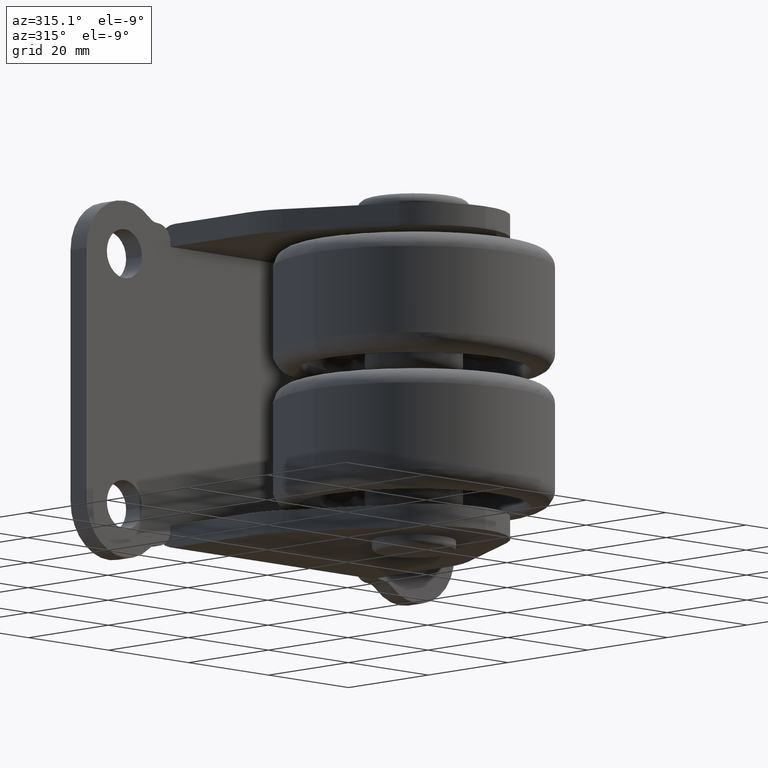
[diagram: clean part render]
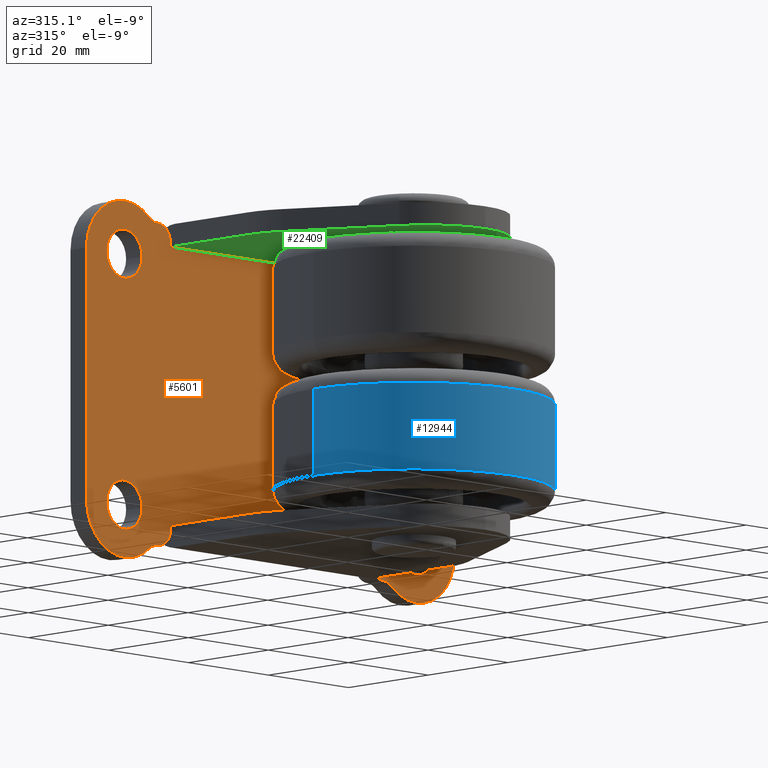
[diagram: same view with three faces highlighted in distinct colors, each labeled with its STEP entity id]
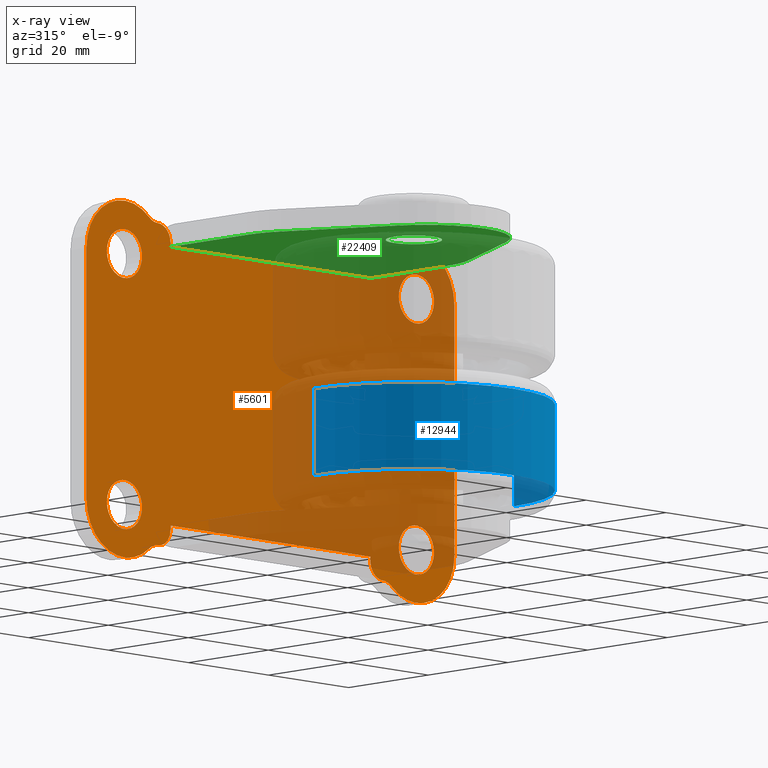
[diagram: x-ray of the same camera — body ghosted, the three highlighted faces saturated]
A machine part, auxiliary view with three faces highlighted in distinct colors.
The next image is the same camera in x-ray (body ghosted, the three faces saturated) — at least one of them is partly hidden behind the body in this view.
Their STEP definitions:

[orange] entity #5601 — the highlighted planar face has unit normal (-0, 1, 0).
#369 = DIRECTION ( 'NONE',  ( 0.000000000000000000, -1.000000000000000000, -3.491481338843135327E-15 ) ) ;
#392 = DIRECTION ( 'NONE',  ( 1.000000000000000000, 0.000000000000000000, 0.000000000000000000 ) ) ;
#583 = CIRCLE ( 'NONE', #4011, 4.400000000000001243 ) ;
#668 = CIRCLE ( 'NONE', #6678, 4.400000000000001243 ) ;
#674 = CARTESIAN_POINT ( 'NONE',  ( 18.10542098948559797, 32.43608458371519987, -24.50000000000000000 ) ) ;
#687 = CARTESIAN_POINT ( 'NONE',  ( -31.89457901051440203, 32.43608458371499381, 29.50000000000000000 ) ) ;
#816 = FACE_BOUND ( 'NONE', #5813, .T. ) ;
#847 = CARTESIAN_POINT ( 'NONE',  ( 18.10542098948559797, 32.43608458371499381, 30.24897948556665028 ) ) ;
#859 = ORIENTED_EDGE ( 'NONE', *, *, #26561, .T. ) ;
#941 = ORIENTED_EDGE ( 'NONE', *, *, #6550, .T. ) ;
#949 = DIRECTION ( 'NONE',  ( -0.000000000000000000, 1.000000000000000000, 3.491481338843135327E-15 ) ) ;
#1073 = FACE_BOUND ( 'NONE', #10955, .T. ) ;
#1192 = CARTESIAN_POINT ( 'NONE',  ( -35.04457901051440416, 32.43608458371519987, -21.24897948556624883 ) ) ;
#1249 = AXIS2_PLACEMENT_3D ( 'NONE', #17398, #21297, #2901 ) ;
#1287 = EDGE_CURVE ( 'NONE', #15219, #7716, #6581, .T. ) ;
#1318 = CARTESIAN_POINT ( 'NONE',  ( -35.09762229228130082, 32.43608458371499381, 33.39897948556644991 ) ) ;
#1359 = VECTOR ( 'NONE', #9820, 1000.000000000000000 ) ;
#1782 = VERTEX_POINT ( 'NONE', #20478 ) ;
#2155 = AXIS2_PLACEMENT_3D ( 'NONE', #22432, #20409, #19869 ) ;
#2202 = DIRECTION ( 'NONE',  ( -1.000000000000000000, 0.000000000000000000, 0.000000000000000000 ) ) ;
#2230 = EDGE_CURVE ( 'NONE', #7716, #20728, #15333, .T. ) ;
#2448 = EDGE_CURVE ( 'NONE', #18706, #6135, #11404, .T. ) ;
#2526 = EDGE_CURVE ( 'NONE', #11428, #20777, #668, .T. ) ;
#2600 = VERTEX_POINT ( 'NONE', #26180 ) ;
#2753 = LINE ( 'NONE', #2884, #11210 ) ;
#2826 = DIRECTION ( 'NONE',  ( 0.000000000000000000, -3.491481338843135327E-15, 1.000000000000000000 ) ) ;
#2854 = CARTESIAN_POINT ( 'NONE',  ( -43.39457901051435584, 32.43608458371504355, 27.00000000000000000 ) ) ;
#2859 = VECTOR ( 'NONE', #2826, 1000.000000000000000 ) ;
#2881 = VERTEX_POINT ( 'NONE', #22747 ) ;
#2884 = CARTESIAN_POINT ( 'NONE',  ( -52.89457901051439848, 32.43608458371519987, -27.50000000000000000 ) ) ;
#2901 = DIRECTION ( 'NONE',  ( -1.000000000000000000, 0.000000000000000000, 0.000000000000000000 ) ) ;
#2952 = VERTEX_POINT ( 'NONE', #11057 ) ;
#2980 = AXIS2_PLACEMENT_3D ( 'NONE', #10815, #10679, #14581 ) ;
#3008 = CARTESIAN_POINT ( 'NONE',  ( 18.10542098948559797, 32.43608458371519987, -21.24897948556640159 ) ) ;
#3021 = EDGE_CURVE ( 'NONE', #21694, #7764, #26351, .T. ) ;
#3248 = DIRECTION ( 'NONE',  ( 0.000000000000000000, -1.000000000000000000, -3.491481338843135327E-15 ) ) ;
#3249 = EDGE_CURVE ( 'NONE', #14262, #16792, #24218, .T. ) ;
#3403 = EDGE_CURVE ( 'NONE', #16792, #19826, #9093, .T. ) ;
#3466 = ORIENTED_EDGE ( 'NONE', *, *, #2230, .F. ) ;
#3716 = AXIS2_PLACEMENT_3D ( 'NONE', #23151, #12562, #18854 ) ;
#3803 = CARTESIAN_POINT ( 'NONE',  ( 21.30846427125220188, 32.43608458371499381, 33.39897948556664886 ) ) ;
#3995 = DIRECTION ( 'NONE',  ( -1.000000000000000000, 0.000000000000000000, 0.000000000000000000 ) ) ;
#4011 = AXIS2_PLACEMENT_3D ( 'NONE', #17735, #11568, #25932 ) ;
#4170 = VERTEX_POINT ( 'NONE', #22543 ) ;
#4202 = DIRECTION ( 'NONE',  ( 0.000000000000000000, -1.000000000000000000, -3.491481338843135327E-15 ) ) ;
#4268 = ORIENTED_EDGE ( 'NONE', *, *, #3249, .T. ) ;
#4276 = CIRCLE ( 'NONE', #2155, 3.149999999999999911 ) ;
#4418 = CARTESIAN_POINT ( 'NONE',  ( -35.04457901051440416, 32.43608458371499381, 33.39897948556644991 ) ) ;
#4445 = ORIENTED_EDGE ( 'NONE', *, *, #2526, .T. ) ;
#4662 = DIRECTION ( 'NONE',  ( 1.000000000000000000, 1.622929641593520113E-29, -4.648255236361250876E-15 ) ) ;
#4663 = ORIENTED_EDGE ( 'NONE', *, *, #8511, .F. ) ;
#4680 = CIRCLE ( 'NONE', #1249, 9.500000000000001776 ) ;
#4794 = LINE ( 'NONE', #7210, #13250 ) ;
#4932 = CARTESIAN_POINT ( 'NONE',  ( -38.99457901051435726, 32.43608458371519987, -18.00000000000000000 ) ) ;
#4944 = CARTESIAN_POINT ( 'NONE',  ( -31.89457901051440203, 32.43608458371499381, 33.50000000000000000 ) ) ;
#4970 = FACE_BOUND ( 'NONE', #6555, .T. ) ;
#5016 = CARTESIAN_POINT ( 'NONE',  ( 21.30846427125220188, 32.43608458371519987, -27.54897948556640230 ) ) ;
#5084 = VERTEX_POINT ( 'NONE', #3803 ) ;
#5138 = CARTESIAN_POINT ( 'NONE',  ( 21.30846427125220188, 32.43608458371499381, 36.54897948556665455 ) ) ;
#5250 = PLANE ( 'NONE',  #25583 ) ;
#5407 = DIRECTION ( 'NONE',  ( -1.000000000000000000, 0.000000000000000000, 0.000000000000000000 ) ) ;
#5595 = VERTEX_POINT ( 'NONE', #23112 ) ;
#5601 = ADVANCED_FACE ( 'NONE', ( #19345, #1073, #15180, #4970, #816 ), #5250, .F. ) ;
#5659 = CARTESIAN_POINT ( 'NONE',  ( 18.10542098948559797, 32.43608458371499381, 33.39897948556644991 ) ) ;
#5681 = EDGE_CURVE ( 'NONE', #14262, #7971, #10904, .T. ) ;
#5765 = ORIENTED_EDGE ( 'NONE', *, *, #10859, .T. ) ;
#5813 = EDGE_LOOP ( 'NONE', ( #16990, #26212 ) ) ;
#5968 = EDGE_CURVE ( 'NONE', #6572, #23785, #7580, .T. ) ;
#6112 = DIRECTION ( 'NONE',  ( -1.000000000000000000, 0.000000000000000000, 0.000000000000000000 ) ) ;
#6135 = VERTEX_POINT ( 'NONE', #16967 ) ;
#6332 = VERTEX_POINT ( 'NONE', #18822 ) ;
#6541 = EDGE_CURVE ( 'NONE', #21694, #6332, #4276, .T. ) ;
#6550 = EDGE_CURVE ( 'NONE', #5595, #7971, #12366, .T. ) ;
#6554 = CARTESIAN_POINT ( 'NONE',  ( -43.39457901051435584, 32.43608458371519987, -18.00000000000000000 ) ) ;
#6555 = EDGE_LOOP ( 'NONE', ( #4663, #12742 ) ) ;
#6572 = VERTEX_POINT ( 'NONE', #8593 ) ;
#6581 = LINE ( 'NONE', #4944, #10761 ) ;
#6612 = EDGE_CURVE ( 'NONE', #21059, #2952, #18445, .T. ) ;
#6678 = AXIS2_PLACEMENT_3D ( 'NONE', #6844, #8994, #16921 ) ;
#6775 = DIRECTION ( 'NONE',  ( 0.000000000000000000, -1.000000000000000000, -3.491481338843135327E-15 ) ) ;
#6844 = CARTESIAN_POINT ( 'NONE',  ( -43.39457901051435584, 32.43608458371504355, 27.00000000000000000 ) ) ;
#7155 = DIRECTION ( 'NONE',  ( 0.000000000000000000, 3.491481338843135327E-15, -1.000000000000000000 ) ) ;
#7206 = CARTESIAN_POINT ( 'NONE',  ( 18.10542098948559797, 32.43608458371519987, -24.39897948556640017 ) ) ;
#7210 = CARTESIAN_POINT ( 'NONE',  ( 18.10542098948559797, 32.43608458371519987, -24.39897948556624740 ) ) ;
#7308 = DIRECTION ( 'NONE',  ( -1.000000000000000000, 0.000000000000000000, 0.000000000000000000 ) ) ;
#7580 = CIRCLE ( 'NONE', #22607, 3.149999999999999911 ) ;
#7716 = VERTEX_POINT ( 'NONE', #16637 ) ;
#7764 = VERTEX_POINT ( 'NONE', #4418 ) ;
#7765 = CIRCLE ( 'NONE', #12497, 3.149999999999999911 ) ;
#7831 = ORIENTED_EDGE ( 'NONE', *, *, #24224, .F. ) ;
#7971 = VERTEX_POINT ( 'NONE', #11521 ) ;
#7991 = VERTEX_POINT ( 'NONE', #20093 ) ;
#8263 = CARTESIAN_POINT ( 'NONE',  ( -38.99457901051435726, 32.43608458371504355, 27.00000000000000000 ) ) ;
#8276 = ORIENTED_EDGE ( 'NONE', *, *, #26147, .F. ) ;
#8325 = CARTESIAN_POINT ( 'NONE',  ( 18.10542098948559797, 32.43608458371517145, -20.49999999999990763 ) ) ;
#8430 = AXIS2_PLACEMENT_3D ( 'NONE', #2854, #3248, #5407 ) ;
#8451 = VECTOR ( 'NONE', #24700, 1000.000000000000000 ) ;
#8511 = EDGE_CURVE ( 'NONE', #18944, #17291, #583, .T. ) ;
#8593 = CARTESIAN_POINT ( 'NONE',  ( 21.25542098948559655, 32.43608458371499381, 33.39897948556664886 ) ) ;
#8755 = ORIENTED_EDGE ( 'NONE', *, *, #19014, .F. ) ;
#8796 = ORIENTED_EDGE ( 'NONE', *, *, #6541, .T. ) ;
#8872 = EDGE_CURVE ( 'NONE', #6572, #5084, #13662, .T. ) ;
#8927 = DIRECTION ( 'NONE',  ( 1.000000000000000000, 0.000000000000000000, 0.000000000000000000 ) ) ;
#8957 = CIRCLE ( 'NONE', #26123, 4.400000000000001243 ) ;
#8994 = DIRECTION ( 'NONE',  ( 0.000000000000000000, 1.000000000000000000, 3.491481338843135327E-15 ) ) ;
#9085 = VERTEX_POINT ( 'NONE', #24261 ) ;
#9093 = LINE ( 'NONE', #7206, #25504 ) ;
#9098 = ORIENTED_EDGE ( 'NONE', *, *, #11740, .T. ) ;
#9183 = DIRECTION ( 'NONE',  ( 0.000000000000000000, 1.000000000000000000, 3.491481338843135327E-15 ) ) ;
#9223 = CARTESIAN_POINT ( 'NONE',  ( 39.10542098948560152, 32.43608458371499381, 36.50000000000000000 ) ) ;
#9310 = ORIENTED_EDGE ( 'NONE', *, *, #5681, .F. ) ;
#9347 = CIRCLE ( 'NONE', #24362, 4.400000000000001243 ) ;
#9788 = EDGE_LOOP ( 'NONE', ( #4445, #16501 ) ) ;
#9820 = DIRECTION ( 'NONE',  ( 1.000000000000000000, 0.000000000000000000, 0.000000000000000000 ) ) ;
#10205 = AXIS2_PLACEMENT_3D ( 'NONE', #1192, #25786, #15566 ) ;
#10277 = ORIENTED_EDGE ( 'NONE', *, *, #17294, .T. ) ;
#10347 = ORIENTED_EDGE ( 'NONE', *, *, #3021, .F. ) ;
#10679 = DIRECTION ( 'NONE',  ( 0.000000000000000000, 1.000000000000000000, 3.491481338843135327E-15 ) ) ;
#10689 = ORIENTED_EDGE ( 'NONE', *, *, #8872, .F. ) ;
#10703 = LINE ( 'NONE', #15212, #15732 ) ;
#10761 = VECTOR ( 'NONE', #13140, 1000.000000000000000 ) ;
#10815 = CARTESIAN_POINT ( 'NONE',  ( -43.39457901051435584, 32.43608458371504355, 27.00000000000000000 ) ) ;
#10856 = CARTESIAN_POINT ( 'NONE',  ( -43.39457901051435584, 32.43608458371519987, -18.00000000000000000 ) ) ;
#10859 = EDGE_CURVE ( 'NONE', #7991, #15888, #11560, .T. ) ;
#10904 = LINE ( 'NONE', #674, #2859 ) ;
#10923 = CARTESIAN_POINT ( 'NONE',  ( -31.89457901051440203, 32.43608458371499381, 30.24897948556645133 ) ) ;
#10955 = EDGE_LOOP ( 'NONE', ( #19109, #8276 ) ) ;
#11008 = VERTEX_POINT ( 'NONE', #20654 ) ;
#11057 = CARTESIAN_POINT ( 'NONE',  ( 34.00542098948560010, 32.43608458371519987, -18.00000000000000000 ) ) ;
#11127 = EDGE_CURVE ( 'NONE', #1782, #7991, #18846, .T. ) ;
#11132 = LINE ( 'NONE', #9223, #16258 ) ;
#11152 = AXIS2_PLACEMENT_3D ( 'NONE', #22561, #24705, #14887 ) ;
#11210 = VECTOR ( 'NONE', #21549, 1000.000000000000000 ) ;
#11313 = EDGE_CURVE ( 'NONE', #17284, #21812, #4680, .T. ) ;
#11404 = CIRCLE ( 'NONE', #21683, 4.400000000000001243 ) ;
#11428 = VERTEX_POINT ( 'NONE', #8263 ) ;
#11521 = CARTESIAN_POINT ( 'NONE',  ( 18.10542098948559797, 32.43608458371519987, -20.49999999999991118 ) ) ;
#11560 = CIRCLE ( 'NONE', #14147, 3.149999999999999911 ) ;
#11568 = DIRECTION ( 'NONE',  ( 0.000000000000000000, -1.000000000000000000, -3.491481338843135327E-15 ) ) ;
#11577 = EDGE_CURVE ( 'NONE', #20777, #11428, #17125, .T. ) ;
#11740 = EDGE_CURVE ( 'NONE', #19826, #9085, #18865, .T. ) ;
#11908 = ORIENTED_EDGE ( 'NONE', *, *, #16548, .F. ) ;
#12324 = CARTESIAN_POINT ( 'NONE',  ( 25.20542098948559939, 32.43608458371519987, -18.00000000000000000 ) ) ;
#12366 = LINE ( 'NONE', #8325, #13701 ) ;
#12497 = AXIS2_PLACEMENT_3D ( 'NONE', #5138, #21248, #23390 ) ;
#12562 = DIRECTION ( 'NONE',  ( -2.550212481863635271E-30, -1.000000000000000000, -3.491481338843135327E-15 ) ) ;
#12730 = CARTESIAN_POINT ( 'NONE',  ( 21.25542098948559655, 32.43608458371519987, -21.24897948556640159 ) ) ;
#12742 = ORIENTED_EDGE ( 'NONE', *, *, #16602, .F. ) ;
#12859 = CARTESIAN_POINT ( 'NONE',  ( 39.10542098948560152, 32.43608458371504355, 27.00000000000039790 ) ) ;
#13045 = CARTESIAN_POINT ( 'NONE',  ( 18.10542098948559797, 32.43608458371519987, -27.50000000000000000 ) ) ;
#13140 = DIRECTION ( 'NONE',  ( 0.000000000000000000, 3.491481338843135327E-15, -1.000000000000000000 ) ) ;
#13250 = VECTOR ( 'NONE', #19298, 1000.000000000000000 ) ;
#13259 = DIRECTION ( 'NONE',  ( 0.000000000000000000, -1.000000000000000000, -3.491481338843135327E-15 ) ) ;
#13276 = AXIS2_PLACEMENT_3D ( 'NONE', #6554, #20907, #14987 ) ;
#13539 = DIRECTION ( 'NONE',  ( -1.000000000000000000, 0.000000000000000000, 0.000000000000000000 ) ) ;
#13662 = LINE ( 'NONE', #19559, #16883 ) ;
#13701 = VECTOR ( 'NONE', #392, 1000.000000000000000 ) ;
#13855 = DIRECTION ( 'NONE',  ( -1.000000000000000000, 0.000000000000000000, 0.000000000000000000 ) ) ;
#13988 = ORIENTED_EDGE ( 'NONE', *, *, #11313, .F. ) ;
#14147 = AXIS2_PLACEMENT_3D ( 'NONE', #21729, #19569, #13539 ) ;
#14262 = VERTEX_POINT ( 'NONE', #3008 ) ;
#14581 = DIRECTION ( 'NONE',  ( -1.000000000000000000, 0.000000000000000000, 0.000000000000000000 ) ) ;
#14782 = ORIENTED_EDGE ( 'NONE', *, *, #11127, .T. ) ;
#14799 = EDGE_LOOP ( 'NONE', ( #18315, #25145, #14782, #5765, #11908, #859, #8755, #941, #9310, #4268, #23025, #9098, #16228, #10277, #13988, #19731, #10689, #24709, #7831, #3466, #22553, #16002, #10347, #8796 ) ) ;
#14887 = DIRECTION ( 'NONE',  ( -1.000000000000000000, 0.000000000000000000, 0.000000000000000000 ) ) ;
#14987 = DIRECTION ( 'NONE',  ( -1.000000000000000000, 0.000000000000000000, 0.000000000000000000 ) ) ;
#15129 = DIRECTION ( 'NONE',  ( 1.000000000000000000, 0.000000000000000000, 0.000000000000000000 ) ) ;
#15180 = FACE_BOUND ( 'NONE', #9788, .T. ) ;
#15212 = CARTESIAN_POINT ( 'NONE',  ( -31.89457901051440203, 32.43608458371519987, -20.50000000000000000 ) ) ;
#15219 = VERTEX_POINT ( 'NONE', #10923 ) ;
#15283 = CIRCLE ( 'NONE', #16576, 4.400000000000001243 ) ;
#15333 = LINE ( 'NONE', #687, #22697 ) ;
#15404 = CARTESIAN_POINT ( 'NONE',  ( 23.37450487697824997, 32.43608458371499381, 34.17117036465484858 ) ) ;
#15566 = DIRECTION ( 'NONE',  ( -1.000000000000000000, 0.000000000000000000, 0.000000000000000000 ) ) ;
#15732 = VECTOR ( 'NONE', #7155, 1000.000000000000000 ) ;
#15888 = VERTEX_POINT ( 'NONE', #20989 ) ;
#16002 = ORIENTED_EDGE ( 'NONE', *, *, #24652, .T. ) ;
#16126 = CARTESIAN_POINT ( 'NONE',  ( 29.60542098948559797, 32.43608458371519987, -18.00000000000000000 ) ) ;
#16228 = ORIENTED_EDGE ( 'NONE', *, *, #19980, .T. ) ;
#16258 = VECTOR ( 'NONE', #17413, 1000.000000000000000 ) ;
#16501 = ORIENTED_EDGE ( 'NONE', *, *, #11577, .T. ) ;
#16510 = CARTESIAN_POINT ( 'NONE',  ( 18.10542098948559797, 32.43608458371499381, 29.50000000000000000 ) ) ;
#16548 = EDGE_CURVE ( 'NONE', #2600, #15888, #4794, .T. ) ;
#16576 = AXIS2_PLACEMENT_3D ( 'NONE', #16126, #21915, #13855 ) ;
#16602 = EDGE_CURVE ( 'NONE', #17291, #18944, #8957, .T. ) ;
#16637 = CARTESIAN_POINT ( 'NONE',  ( -31.89457901051440203, 32.43608458371499381, 29.50000000000000000 ) ) ;
#16792 = VERTEX_POINT ( 'NONE', #24936 ) ;
#16883 = VECTOR ( 'NONE', #21853, 1000.000000000000000 ) ;
#16921 = DIRECTION ( 'NONE',  ( -1.000000000000000000, 0.000000000000000000, 0.000000000000000000 ) ) ;
#16967 = CARTESIAN_POINT ( 'NONE',  ( 25.20542098948559939, 32.43608458371504355, 27.00000000000000000 ) ) ;
#16990 = ORIENTED_EDGE ( 'NONE', *, *, #6612, .T. ) ;
#17125 = CIRCLE ( 'NONE', #2980, 4.400000000000001243 ) ;
#17221 = DIRECTION ( 'NONE',  ( 1.000000000000000000, 0.000000000000000000, 0.000000000000000000 ) ) ;
#17250 = CARTESIAN_POINT ( 'NONE',  ( 29.60542098948559797, 32.43608458371504355, 27.00000000000000000 ) ) ;
#17284 = VERTEX_POINT ( 'NONE', #15404 ) ;
#17291 = VERTEX_POINT ( 'NONE', #4932 ) ;
#17294 = EDGE_CURVE ( 'NONE', #2881, #21812, #11132, .T. ) ;
#17396 = CARTESIAN_POINT ( 'NONE',  ( 21.30846427125220188, 32.43608458371519987, -24.39897948556640017 ) ) ;
#17398 = CARTESIAN_POINT ( 'NONE',  ( 29.60542098948529954, 32.43608458371504355, 27.00000000000035172 ) ) ;
#17413 = DIRECTION ( 'NONE',  ( 0.000000000000000000, -3.491481338843135327E-15, 1.000000000000000000 ) ) ;
#17438 = CARTESIAN_POINT ( 'NONE',  ( 29.60542098948559797, 32.43608458371504355, 27.00000000000000000 ) ) ;
#17735 = CARTESIAN_POINT ( 'NONE',  ( -43.39457901051435584, 32.43608458371519987, -18.00000000000000000 ) ) ;
#18315 = ORIENTED_EDGE ( 'NONE', *, *, #23821, .T. ) ;
#18323 = DIRECTION ( 'NONE',  ( 0.000000000000000000, -1.000000000000000000, -3.491481338843135327E-15 ) ) ;
#18445 = CIRCLE ( 'NONE', #11152, 4.400000000000001243 ) ;
#18706 = VERTEX_POINT ( 'NONE', #22148 ) ;
#18822 = CARTESIAN_POINT ( 'NONE',  ( -37.16366289800729561, 32.43608458371499381, 34.17117036465464963 ) ) ;
#18846 = CIRCLE ( 'NONE', #13276, 9.500000000000001776 ) ;
#18854 = DIRECTION ( 'NONE',  ( -1.000000000000000000, 0.000000000000000000, 7.304098846218133681E-16 ) ) ;
#18865 = CIRCLE ( 'NONE', #20157, 3.149999999999999911 ) ;
#18944 = VERTEX_POINT ( 'NONE', #19830 ) ;
#19014 = EDGE_CURVE ( 'NONE', #5595, #4170, #10703, .T. ) ;
#19109 = ORIENTED_EDGE ( 'NONE', *, *, #2448, .F. ) ;
#19298 = DIRECTION ( 'NONE',  ( -1.000000000000000000, 0.000000000000000000, 0.000000000000000000 ) ) ;
#19345 = FACE_OUTER_BOUND ( 'NONE', #14799, .T. ) ;
#19447 = DIRECTION ( 'NONE',  ( 0.000000000000000000, -1.000000000000000000, -3.491481338843135327E-15 ) ) ;
#19467 = DIRECTION ( 'NONE',  ( 1.000000000000000000, 0.000000000000000000, 0.000000000000000000 ) ) ;
#19559 = CARTESIAN_POINT ( 'NONE',  ( 18.10542098948529954, 32.43608458371499381, 33.39897948556660623 ) ) ;
#19569 = DIRECTION ( 'NONE',  ( 0.000000000000000000, 1.000000000000000000, 3.491481338843135327E-15 ) ) ;
#19731 = ORIENTED_EDGE ( 'NONE', *, *, #22565, .T. ) ;
#19826 = VERTEX_POINT ( 'NONE', #17396 ) ;
#19830 = CARTESIAN_POINT ( 'NONE',  ( -47.79457901051429758, 32.43608458371519987, -18.00000000000000000 ) ) ;
#19869 = DIRECTION ( 'NONE',  ( -1.000000000000000000, 0.000000000000000000, 0.000000000000000000 ) ) ;
#19980 = EDGE_CURVE ( 'NONE', #9085, #2881, #23898, .T. ) ;
#20093 = CARTESIAN_POINT ( 'NONE',  ( -37.16366289800729561, 32.43608458371519987, -25.17117036465444713 ) ) ;
#20157 = AXIS2_PLACEMENT_3D ( 'NONE', #5016, #9183, #7308 ) ;
#20409 = DIRECTION ( 'NONE',  ( 0.000000000000000000, 1.000000000000000000, 3.491481338843135327E-15 ) ) ;
#20478 = CARTESIAN_POINT ( 'NONE',  ( -52.89457901051439848, 32.43608458371519987, -18.00000000000000000 ) ) ;
#20654 = CARTESIAN_POINT ( 'NONE',  ( -52.89457901051439848, 32.43608458371504355, 27.00000000000000000 ) ) ;
#20728 = VERTEX_POINT ( 'NONE', #21894 ) ;
#20777 = VERTEX_POINT ( 'NONE', #22700 ) ;
#20907 = DIRECTION ( 'NONE',  ( 0.000000000000000000, -1.000000000000000000, -3.491481338843135327E-15 ) ) ;
#20989 = CARTESIAN_POINT ( 'NONE',  ( -35.09762229228130082, 32.43608458371519987, -24.39897948556624740 ) ) ;
#21059 = VERTEX_POINT ( 'NONE', #12324 ) ;
#21248 = DIRECTION ( 'NONE',  ( 0.000000000000000000, 1.000000000000000000, 3.491481338843135327E-15 ) ) ;
#21297 = DIRECTION ( 'NONE',  ( 0.000000000000000000, 1.000000000000000000, 3.491481338843135327E-15 ) ) ;
#21549 = DIRECTION ( 'NONE',  ( 0.000000000000000000, 3.491481338843135327E-15, -1.000000000000000000 ) ) ;
#21683 = AXIS2_PLACEMENT_3D ( 'NONE', #17438, #19447, #23483 ) ;
#21694 = VERTEX_POINT ( 'NONE', #1318 ) ;
#21729 = CARTESIAN_POINT ( 'NONE',  ( -35.09762229228130082, 32.43608458371519987, -27.54897948556624954 ) ) ;
#21812 = VERTEX_POINT ( 'NONE', #12859 ) ;
#21853 = DIRECTION ( 'NONE',  ( 1.000000000000000000, -1.622929641593520113E-29, 4.648255236361250876E-15 ) ) ;
#21894 = CARTESIAN_POINT ( 'NONE',  ( 18.10542098948560152, 32.43608458371499381, 29.50000000000000000 ) ) ;
#21915 = DIRECTION ( 'NONE',  ( 0.000000000000000000, 1.000000000000000000, 3.491481338843135327E-15 ) ) ;
#22065 = AXIS2_PLACEMENT_3D ( 'NONE', #12730, #369, #3995 ) ;
#22148 = CARTESIAN_POINT ( 'NONE',  ( 34.00542098948560010, 32.43608458371504355, 27.00000000000000000 ) ) ;
#22432 = CARTESIAN_POINT ( 'NONE',  ( -35.09762229228130082, 32.43608458371499381, 36.54897948556644849 ) ) ;
#22543 = CARTESIAN_POINT ( 'NONE',  ( -31.89457901051440203, 32.43608458371519987, -21.24897948556624883 ) ) ;
#22553 = ORIENTED_EDGE ( 'NONE', *, *, #1287, .F. ) ;
#22561 = CARTESIAN_POINT ( 'NONE',  ( 29.60542098948559797, 32.43608458371519987, -18.00000000000000000 ) ) ;
#22565 = EDGE_CURVE ( 'NONE', #17284, #5084, #7765, .T. ) ;
#22606 = CARTESIAN_POINT ( 'NONE',  ( -35.04457901051440416, 32.43608458371499381, 30.24897948556645133 ) ) ;
#22607 = AXIS2_PLACEMENT_3D ( 'NONE', #24506, #18323, #6112 ) ;
#22697 = VECTOR ( 'NONE', #17221, 1000.000000000000000 ) ;
#22700 = CARTESIAN_POINT ( 'NONE',  ( -47.79457901051429758, 32.43608458371504355, 27.00000000000000000 ) ) ;
#22747 = CARTESIAN_POINT ( 'NONE',  ( 39.10542098948560152, 32.43608458371519987, -18.00000000000000000 ) ) ;
#22964 = EDGE_CURVE ( 'NONE', #11008, #1782, #2753, .T. ) ;
#23025 = ORIENTED_EDGE ( 'NONE', *, *, #3403, .T. ) ;
#23052 = CIRCLE ( 'NONE', #10205, 3.149999999999999911 ) ;
#23112 = CARTESIAN_POINT ( 'NONE',  ( -31.89457901051440203, 32.43608458371519987, -20.49999999999991118 ) ) ;
#23151 = CARTESIAN_POINT ( 'NONE',  ( 29.60542098948529954, 32.43608458371519987, -18.00000000000000000 ) ) ;
#23358 = EDGE_CURVE ( 'NONE', #2952, #21059, #15283, .T. ) ;
#23390 = DIRECTION ( 'NONE',  ( -1.000000000000000000, 0.000000000000000000, 0.000000000000000000 ) ) ;
#23483 = DIRECTION ( 'NONE',  ( 1.000000000000000000, 0.000000000000000000, 0.000000000000000000 ) ) ;
#23785 = VERTEX_POINT ( 'NONE', #847 ) ;
#23821 = EDGE_CURVE ( 'NONE', #6332, #11008, #26007, .T. ) ;
#23898 = CIRCLE ( 'NONE', #3716, 9.500000000000001776 ) ;
#24218 = CIRCLE ( 'NONE', #22065, 3.149999999999999911 ) ;
#24224 = EDGE_CURVE ( 'NONE', #20728, #23785, #24572, .T. ) ;
#24261 = CARTESIAN_POINT ( 'NONE',  ( 23.37450487697824997, 32.43608458371519987, -25.17117036465464963 ) ) ;
#24320 = CIRCLE ( 'NONE', #26464, 3.149999999999999911 ) ;
#24362 = AXIS2_PLACEMENT_3D ( 'NONE', #17250, #6775, #8927 ) ;
#24506 = CARTESIAN_POINT ( 'NONE',  ( 21.25542098948559655, 32.43608458371499381, 30.24897948556665028 ) ) ;
#24572 = LINE ( 'NONE', #16510, #8451 ) ;
#24652 = EDGE_CURVE ( 'NONE', #15219, #7764, #24320, .T. ) ;
#24700 = DIRECTION ( 'NONE',  ( 0.000000000000000000, -3.491481338843135327E-15, 1.000000000000000000 ) ) ;
#24705 = DIRECTION ( 'NONE',  ( 0.000000000000000000, 1.000000000000000000, 3.491481338843135327E-15 ) ) ;
#24709 = ORIENTED_EDGE ( 'NONE', *, *, #5968, .T. ) ;
#24936 = CARTESIAN_POINT ( 'NONE',  ( 21.25542098948559655, 32.43608458371519987, -24.39897948556640017 ) ) ;
#25145 = ORIENTED_EDGE ( 'NONE', *, *, #22964, .T. ) ;
#25504 = VECTOR ( 'NONE', #4662, 1000.000000000000000 ) ;
#25583 = AXIS2_PLACEMENT_3D ( 'NONE', #13045, #949, #19467 ) ;
#25786 = DIRECTION ( 'NONE',  ( 0.000000000000000000, -1.000000000000000000, -3.491481338843135327E-15 ) ) ;
#25932 = DIRECTION ( 'NONE',  ( 1.000000000000000000, 0.000000000000000000, 0.000000000000000000 ) ) ;
#26007 = CIRCLE ( 'NONE', #8430, 9.500000000000001776 ) ;
#26123 = AXIS2_PLACEMENT_3D ( 'NONE', #10856, #13259, #15129 ) ;
#26147 = EDGE_CURVE ( 'NONE', #6135, #18706, #9347, .T. ) ;
#26180 = CARTESIAN_POINT ( 'NONE',  ( -35.04457901051440416, 32.43608458371519987, -24.39897948556624740 ) ) ;
#26212 = ORIENTED_EDGE ( 'NONE', *, *, #23358, .T. ) ;
#26351 = LINE ( 'NONE', #5659, #1359 ) ;
#26464 = AXIS2_PLACEMENT_3D ( 'NONE', #22606, #4202, #2202 ) ;
#26561 = EDGE_CURVE ( 'NONE', #2600, #4170, #23052, .T. ) ;

[blue] entity #12944 — the highlighted cylindrical surface (partial cylindrical patch) has radius 25 mm, axis along (-0, 0, -1).
#929 = CARTESIAN_POINT ( 'NONE',  ( -6.894579010514373607, -3.563915416284874738, -5.507747036226359369E-14 ) ) ;
#2284 = CARTESIAN_POINT ( 'NONE',  ( -6.894579010514406470, -3.563915416284824111, -15.50000000000000000 ) ) ;
#3279 = EDGE_CURVE ( 'NONE', #22180, #8482, #6434, .T. ) ;
#3870 = DIRECTION ( 'NONE',  ( -1.900574775785575265E-15, 2.928866241592036568E-15, -1.000000000000000000 ) ) ;
#4246 = AXIS2_PLACEMENT_3D ( 'NONE', #2284, #10479, #18655 ) ;
#4261 = DIRECTION ( 'NONE',  ( -1.907992876526356259E-15, 2.928866755618706364E-15, -1.000000000000000000 ) ) ;
#5496 = EDGE_LOOP ( 'NONE', ( #14744, #17522, #10496, #12912 ) ) ;
#6434 = LINE ( 'NONE', #26445, #16493 ) ;
#8482 = VERTEX_POINT ( 'NONE', #19603 ) ;
#10162 = AXIS2_PLACEMENT_3D ( 'NONE', #929, #23221, #16795 ) ;
#10312 = EDGE_CURVE ( 'NONE', #12955, #8482, #22698, .T. ) ;
#10323 = CARTESIAN_POINT ( 'NONE',  ( -31.89457895049438463, -3.562183077075085080, -7.558027291866200319E-15 ) ) ;
#10479 = DIRECTION ( 'NONE',  ( 1.873298407090117518E-15, -2.928864351515112320E-15, 1.000000000000000000 ) ) ;
#10496 = ORIENTED_EDGE ( 'NONE', *, *, #10312, .T. ) ;
#12912 = ORIENTED_EDGE ( 'NONE', *, *, #3279, .F. ) ;
#12944 = ADVANCED_FACE ( 'NONE', ( #18365 ), #22667, .T. ) ;
#12955 = VERTEX_POINT ( 'NONE', #24673 ) ;
#12967 = VERTEX_POINT ( 'NONE', #10323 ) ;
#14091 = LINE ( 'NONE', #24286, #14104 ) ;
#14104 = VECTOR ( 'NONE', #3870, 1000.000000000000000 ) ;
#14623 = DIRECTION ( 'NONE',  ( -1.900574775785575265E-15, 2.928866241592036568E-15, -1.000000000000000000 ) ) ;
#14744 = ORIENTED_EDGE ( 'NONE', *, *, #25000, .T. ) ;
#16161 = AXIS2_PLACEMENT_3D ( 'NONE', #18497, #4261, #22526 ) ;
#16388 = EDGE_CURVE ( 'NONE', #12967, #12955, #14091, .T. ) ;
#16493 = VECTOR ( 'NONE', #14623, 1000.000000000000000 ) ;
#16795 = DIRECTION ( 'NONE',  ( -0.9999999975992007739, 6.929356838941340511E-05, 1.900777722815894331E-15 ) ) ;
#17522 = ORIENTED_EDGE ( 'NONE', *, *, #16388, .T. ) ;
#18365 = FACE_OUTER_BOUND ( 'NONE', #5496, .T. ) ;
#18497 = CARTESIAN_POINT ( 'NONE',  ( -6.894579010514368278, -3.563915416284883175, 3.999999999999945377 ) ) ;
#18655 = DIRECTION ( 'NONE',  ( 0.9999999975992005519, -6.929356839080121099E-05, -1.873501354054951268E-15 ) ) ;
#19603 = CARTESIAN_POINT ( 'NONE',  ( 18.10542092946561965, -3.565647755494596449, -15.50000000000000000 ) ) ;
#22180 = VERTEX_POINT ( 'NONE', #23552 ) ;
#22526 = DIRECTION ( 'NONE',  ( 0.9999999975992005519, -6.929356839080121099E-05, -1.908195823574487409E-15 ) ) ;
#22667 = CYLINDRICAL_SURFACE ( 'NONE', #16161, 25.00000000000000355 ) ;
#22698 = CIRCLE ( 'NONE', #4246, 25.00000000000000355 ) ;
#23221 = DIRECTION ( 'NONE',  ( -1.900574775785575660E-15, 2.928866241592036568E-15, -1.000000000000000000 ) ) ;
#23552 = CARTESIAN_POINT ( 'NONE',  ( 18.10542092946564807, -3.565647755494634641, -1.025969134326609808E-13 ) ) ;
#24286 = CARTESIAN_POINT ( 'NONE',  ( -31.89457895049441305, -3.562183077075138815, 4.000000000000000000 ) ) ;
#24673 = CARTESIAN_POINT ( 'NONE',  ( -31.89457895049444147, -3.562183077075097071, -15.50000000000000000 ) ) ;
#25000 = EDGE_CURVE ( 'NONE', #22180, #12967, #26035, .T. ) ;
#26035 = CIRCLE ( 'NONE', #10162, 25.00000000000001421 ) ;
#26445 = CARTESIAN_POINT ( 'NONE',  ( 18.10542092946564807, -3.565647755494634641, 3.999999999999900524 ) ) ;

[green] entity #22409 — the highlighted planar face has unit normal (-0, 0, -1).
#47 = ORIENTED_EDGE ( 'NONE', *, *, #6872, .F. ) ;
#516 = ORIENTED_EDGE ( 'NONE', *, *, #15858, .T. ) ;
#571 = DIRECTION ( 'NONE',  ( -0.000000000000000000, 3.491481338843135327E-15, -1.000000000000000000 ) ) ;
#687 = CARTESIAN_POINT ( 'NONE',  ( -31.89457901051440203, 32.43608458371499381, 29.50000000000000000 ) ) ;
#839 = PLANE ( 'NONE',  #21910 ) ;
#969 = CARTESIAN_POINT ( 'NONE',  ( 18.10542098948559797, 13.04077093986426128, 29.50000000000000000 ) ) ;
#971 = VERTEX_POINT ( 'NONE', #12815 ) ;
#1059 = ORIENTED_EDGE ( 'NONE', *, *, #1785, .T. ) ;
#1061 = DIRECTION ( 'NONE',  ( 0.1047020384902863921, -0.9945036365624705388, -3.469446951953613400E-15 ) ) ;
#1089 = DIRECTION ( 'NONE',  ( 0.000000000000000000, -3.469446951953614978E-15, 1.000000000000000000 ) ) ;
#1330 = VERTEX_POINT ( 'NONE', #22951 ) ;
#1363 = CIRCLE ( 'NONE', #8238, 5.000000000000000888 ) ;
#1679 = DIRECTION ( 'NONE',  ( -0.4543841359174639050, -0.8908058469871759089, -3.110231991288074659E-15 ) ) ;
#1785 = EDGE_CURVE ( 'NONE', #4085, #1330, #16580, .T. ) ;
#1802 = DIRECTION ( 'NONE',  ( 0.000000000000000000, 1.000000000000000000, 3.491481338843135327E-15 ) ) ;
#2000 = VERTEX_POINT ( 'NONE', #7564 ) ;
#2054 = EDGE_CURVE ( 'NONE', #19079, #7716, #13742, .T. ) ;
#2210 = EDGE_CURVE ( 'NONE', #971, #2367, #7137, .T. ) ;
#2230 = EDGE_CURVE ( 'NONE', #7716, #20728, #15333, .T. ) ;
#2251 = CARTESIAN_POINT ( 'NONE',  ( -31.89457901051440203, 13.04077093986423996, 29.50000000000000000 ) ) ;
#2367 = VERTEX_POINT ( 'NONE', #10364 ) ;
#3296 = CIRCLE ( 'NONE', #14477, 15.00000000000000178 ) ;
#3832 = ORIENTED_EDGE ( 'NONE', *, *, #2210, .F. ) ;
#3890 = ORIENTED_EDGE ( 'NONE', *, *, #2230, .T. ) ;
#3897 = EDGE_CURVE ( 'NONE', #23632, #2000, #1363, .T. ) ;
#4085 = VERTEX_POINT ( 'NONE', #17849 ) ;
#5269 = DIRECTION ( 'NONE',  ( 0.000000000000000000, -1.000000000000000000, -3.469446951953613794E-15 ) ) ;
#6251 = CARTESIAN_POINT ( 'NONE',  ( -4.765635555845650906, -35.40190443678235255, 29.50000000000000000 ) ) ;
#6848 = DIRECTION ( 'NONE',  ( 0.000000000000000000, 1.000000000000000000, 3.491481338843135327E-15 ) ) ;
#6872 = EDGE_CURVE ( 'NONE', #22107, #1330, #12865, .T. ) ;
#7137 = LINE ( 'NONE', #13189, #11118 ) ;
#7309 = CARTESIAN_POINT ( 'NONE',  ( -6.894579010514385153, -3.563915416284980431, 29.50000000000000000 ) ) ;
#7564 = CARTESIAN_POINT ( 'NONE',  ( -2.844074986995647869, -0.6324623371007433992, 29.49999999999995381 ) ) ;
#7716 = VERTEX_POINT ( 'NONE', #16637 ) ;
#8238 = AXIS2_PLACEMENT_3D ( 'NONE', #15169, #19456, #1061 ) ;
#9162 = CARTESIAN_POINT ( 'NONE',  ( -6.894579010514389594, -6.563915416284980431, 29.50000000000000000 ) ) ;
#9165 = FACE_OUTER_BOUND ( 'NONE', #26053, .T. ) ;
#9769 = DIRECTION ( 'NONE',  ( 0.000000000000000000, -1.000000000000000000, -3.469446951953613794E-15 ) ) ;
#9997 = CARTESIAN_POINT ( 'NONE',  ( 3.105420989485605077, 13.04077093986426128, 29.50000000000000000 ) ) ;
#10364 = CARTESIAN_POINT ( 'NONE',  ( -20.25666671532204788, -13.37967745504690065, 29.50000000000000000 ) ) ;
#10586 = CIRCLE ( 'NONE', #18723, 15.00000000000000000 ) ;
#10620 = VECTOR ( 'NONE', #1802, 1000.000000000000000 ) ;
#10743 = AXIS2_PLACEMENT_3D ( 'NONE', #17960, #24005, #9769 ) ;
#10919 = DIRECTION ( 'NONE',  ( 0.4543841359174639050, -0.8908058469871759089, -3.110231991288074659E-15 ) ) ;
#10991 = CARTESIAN_POINT ( 'NONE',  ( -10.94508303403309313, -6.495368495469185710, 29.49999999999991829 ) ) ;
#11118 = VECTOR ( 'NONE', #10919, 999.9999999999998863 ) ;
#11327 = FACE_BOUND ( 'NONE', #11764, .T. ) ;
#11347 = DIRECTION ( 'NONE',  ( 0.1047020384902863921, -0.9945036365624705388, -3.469446951953613400E-15 ) ) ;
#11483 = VECTOR ( 'NONE', #1679, 999.9999999999998863 ) ;
#11764 = EDGE_LOOP ( 'NONE', ( #23017, #17271 ) ) ;
#12815 = CARTESIAN_POINT ( 'NONE',  ( -30.25666671532204788, 6.225008901102289549, 29.50000000000000000 ) ) ;
#12865 = CIRCLE ( 'NONE', #10743, 15.00000000000000178 ) ;
#13189 = CARTESIAN_POINT ( 'NONE',  ( -19.34676961385615357, -15.16350218410775064, 29.50000000000000000 ) ) ;
#13742 = LINE ( 'NONE', #17775, #10620 ) ;
#14086 = VERTEX_POINT ( 'NONE', #16046 ) ;
#14477 = AXIS2_PLACEMENT_3D ( 'NONE', #9162, #1089, #5269 ) ;
#15168 = ORIENTED_EDGE ( 'NONE', *, *, #2054, .T. ) ;
#15169 = CARTESIAN_POINT ( 'NONE',  ( -6.894579010514385153, -3.563915416284980431, 29.50000000000000000 ) ) ;
#15333 = LINE ( 'NONE', #687, #22697 ) ;
#15528 = EDGE_CURVE ( 'NONE', #14086, #20728, #25512, .T. ) ;
#15791 = AXIS2_PLACEMENT_3D ( 'NONE', #9997, #22071, #20196 ) ;
#15858 = EDGE_CURVE ( 'NONE', #14086, #4085, #24371, .T. ) ;
#16046 = CARTESIAN_POINT ( 'NONE',  ( 18.10542098948559797, 13.04077093986426128, 29.50000000000000000 ) ) ;
#16580 = LINE ( 'NONE', #6251, #11483 ) ;
#16637 = CARTESIAN_POINT ( 'NONE',  ( -31.89457901051440203, 32.43608458371499381, 29.50000000000000000 ) ) ;
#17221 = DIRECTION ( 'NONE',  ( 1.000000000000000000, 0.000000000000000000, 0.000000000000000000 ) ) ;
#17271 = ORIENTED_EDGE ( 'NONE', *, *, #22074, .F. ) ;
#17775 = CARTESIAN_POINT ( 'NONE',  ( -31.89457901051440203, -21.56391541628500264, 29.50000000000000000 ) ) ;
#17849 = CARTESIAN_POINT ( 'NONE',  ( 16.46750869429325093, 6.225008901102329517, 29.50000000000000000 ) ) ;
#17960 = CARTESIAN_POINT ( 'NONE',  ( -6.894579010514389594, -6.563915416284980431, 29.50000000000000000 ) ) ;
#18723 = AXIS2_PLACEMENT_3D ( 'NONE', #19558, #23333, #25894 ) ;
#18899 = EDGE_CURVE ( 'NONE', #971, #19079, #10586, .T. ) ;
#19079 = VERTEX_POINT ( 'NONE', #2251 ) ;
#19456 = DIRECTION ( 'NONE',  ( -3.632581683034544323E-16, 3.450377610578449916E-15, -1.000000000000000000 ) ) ;
#19558 = CARTESIAN_POINT ( 'NONE',  ( -16.89457901051440203, 13.04077093986423996, 29.50000000000000000 ) ) ;
#19599 = ORIENTED_EDGE ( 'NONE', *, *, #15528, .F. ) ;
#20189 = AXIS2_PLACEMENT_3D ( 'NONE', #7309, #25972, #11347 ) ;
#20196 = DIRECTION ( 'NONE',  ( 1.763635533909753814E-15, -1.000000000000000000, -3.469446951953614189E-15 ) ) ;
#20728 = VERTEX_POINT ( 'NONE', #21894 ) ;
#21024 = CIRCLE ( 'NONE', #20189, 5.000000000000000888 ) ;
#21894 = CARTESIAN_POINT ( 'NONE',  ( 18.10542098948560152, 32.43608458371499381, 29.50000000000000000 ) ) ;
#21910 = AXIS2_PLACEMENT_3D ( 'NONE', #969, #571, #23260 ) ;
#22071 = DIRECTION ( 'NONE',  ( 3.886062768627074545E-32, 3.469446951953614978E-15, -1.000000000000000000 ) ) ;
#22074 = EDGE_CURVE ( 'NONE', #2000, #23632, #21024, .T. ) ;
#22107 = VERTEX_POINT ( 'NONE', #25842 ) ;
#22409 = ADVANCED_FACE ( 'NONE', ( #11327, #9165 ), #839, .T. ) ;
#22697 = VECTOR ( 'NONE', #17221, 1000.000000000000000 ) ;
#22951 = CARTESIAN_POINT ( 'NONE',  ( 6.467508694293240268, -13.37967745504692019, 29.50000000000000000 ) ) ;
#23017 = ORIENTED_EDGE ( 'NONE', *, *, #3897, .F. ) ;
#23260 = DIRECTION ( 'NONE',  ( 0.000000000000000000, 1.000000000000000000, 3.491481338843135327E-15 ) ) ;
#23333 = DIRECTION ( 'NONE',  ( 0.000000000000000000, 3.469446951953614978E-15, -1.000000000000000000 ) ) ;
#23507 = VECTOR ( 'NONE', #6848, 1000.000000000000000 ) ;
#23630 = CARTESIAN_POINT ( 'NONE',  ( 18.10542098948559797, -21.56391541628500264, 29.50000000000000000 ) ) ;
#23632 = VERTEX_POINT ( 'NONE', #10991 ) ;
#24005 = DIRECTION ( 'NONE',  ( 0.000000000000000000, -3.469446951953614978E-15, 1.000000000000000000 ) ) ;
#24156 = ORIENTED_EDGE ( 'NONE', *, *, #18899, .T. ) ;
#24371 = CIRCLE ( 'NONE', #15791, 15.00000000000000000 ) ;
#25512 = LINE ( 'NONE', #23630, #23507 ) ;
#25573 = EDGE_CURVE ( 'NONE', #2367, #22107, #3296, .T. ) ;
#25842 = CARTESIAN_POINT ( 'NONE',  ( -6.894579010514389594, -21.56391541628500264, 29.50000000000000000 ) ) ;
#25894 = DIRECTION ( 'NONE',  ( 0.000000000000000000, -1.000000000000000000, -3.469446951953614189E-15 ) ) ;
#25972 = DIRECTION ( 'NONE',  ( -3.632581683034544323E-16, 3.450377610578449916E-15, -1.000000000000000000 ) ) ;
#26053 = EDGE_LOOP ( 'NONE', ( #3890, #19599, #516, #1059, #47, #26235, #3832, #24156, #15168 ) ) ;
#26235 = ORIENTED_EDGE ( 'NONE', *, *, #25573, .F. ) ;